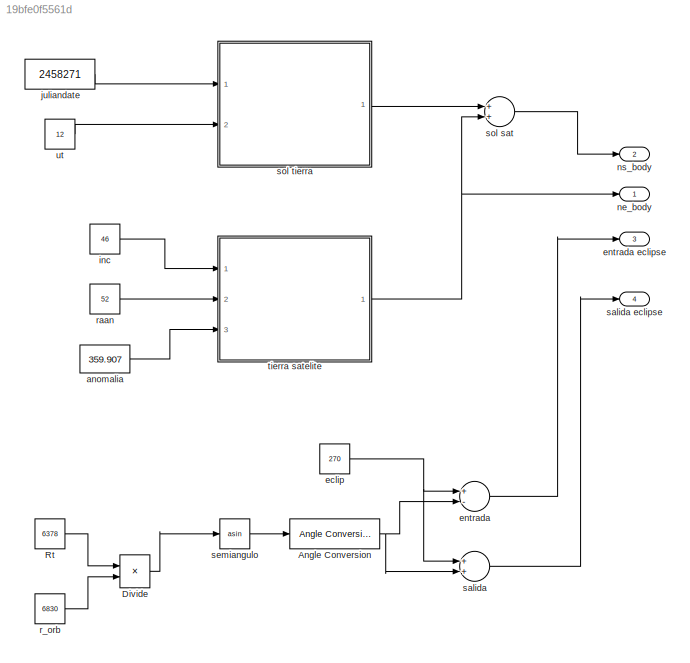
MODEL slx_19bfe0f5561d
KIND model
CONFIG AbsTol = auto
CONFIG EnableMultiTasking = off
CONFIG FixedStep = auto
CONFIG MaxStep = auto
CONFIG MinStep = auto
CONFIG RelTol = 1e-3
CONFIG SampleTimeConstraint = Unconstrained
CONFIG Solver = VariableStepAuto
CONFIG SolverName = VariableStepAuto
CONFIG StartTime = 0.0
CONFIG StopTime = 10.0
BLOCK [Reference] Angle Conversion  REF=aerolibconvert2/Angle Conversion
  Ports = [1, 1]
  SourceBlock = aerolibconvert2/Angle Conversion
  SourceProductBaseCode = AE
  SourceProductName = Aerospace Blockset
  SourceType = Angle Conversion
BLOCK [Product] Divide
  InputSameDT = off
  Inputs = */
  OutDataTypeStr = Inherit: Inherit via internal rule
  Ports = [2, 1]
  RndMeth = Floor
  SaturateOnIntegerOverflow = off
BLOCK [Constant] Rt
  Value = 6378
BLOCK [Constant] anomalia
  Value = 359.907
BLOCK [Constant] eclip
  Value = 270
BLOCK [Sum] entrada
  InputSameDT = off
  Inputs = +-
  OutDataTypeStr = Inherit: Inherit via internal rule
  Ports = [2, 1]
  SaturateOnIntegerOverflow = off
BLOCK [Outport] entrada eclipse
  IconDisplay = Port number
  Port = 3
  VectorParamsAs1DForOutWhenUnconnected = off
BLOCK [Constant] inc
  Value = 46
BLOCK [Constant] juliandate
  Value = 2458271
BLOCK [Outport] ne_body
  IconDisplay = Port number
  VectorParamsAs1DForOutWhenUnconnected = off
BLOCK [Outport] ns_body
  IconDisplay = Port number
  Port = 2
  VectorParamsAs1DForOutWhenUnconnected = off
BLOCK [Constant] r_orb
  Value = 6830
BLOCK [Constant] raan
  Value = 52
BLOCK [Sum] salida
  InputSameDT = off
  OutDataTypeStr = Inherit: Inherit via internal rule
  Ports = [2, 1]
  SaturateOnIntegerOverflow = off
BLOCK [Outport] salida eclipse
  IconDisplay = Port number
  Port = 4
  VectorParamsAs1DForOutWhenUnconnected = off
BLOCK [Trigonometry] semiangulo
  Operator = asin
  Ports = [1, 1]
BLOCK [Sum] sol sat
  InputSameDT = off
  OutDataTypeStr = Inherit: Inherit via internal rule
  Ports = [2, 1]
  SaturateOnIntegerOverflow = off
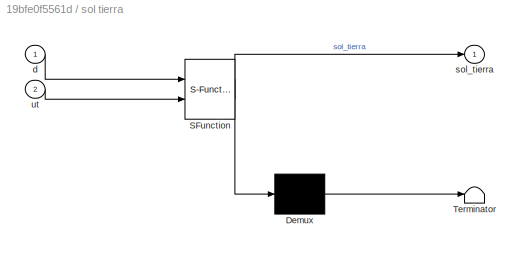
BLOCK [SubSystem] sol tierra
  ErrorFcn = Stateflow.Translate.translate
  PermitHierarchicalResolution = ExplicitOnly
  Ports = [2, 1]
  RequestExecContextInheritance = off
  SFBlockType = MATLAB Function
  TreatAsAtomicUnit = on
BLOCK [Demux] sol tierra/ Demux 
  Outputs = 1
  Ports = [1, 1]
BLOCK [S-Function] sol tierra/ SFunction 
  EnableBusSupport = on
  FunctionName = sf_sfun
  PortCounts = [2 2]
  Ports = [2, 2]
  SFcnIsStateOwnerBlock = off
  SFunctionDeploymentMode = off
  Tag = Stateflow S-Function 2
BLOCK [Terminator] sol tierra/ Terminator 
BLOCK [Inport] sol tierra/d
  IconDisplay = Port number
BLOCK [Outport] sol tierra/sol_tierra
  IconDisplay = Port number
BLOCK [Inport] sol tierra/ut
  IconDisplay = Port number
  Port = 2
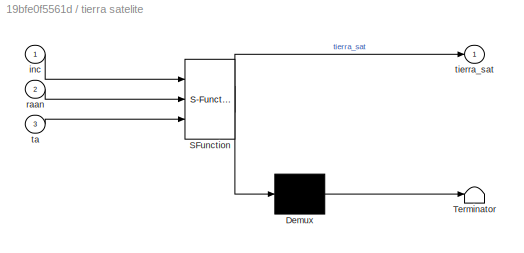
BLOCK [SubSystem] tierra satelite
  ErrorFcn = Stateflow.Translate.translate
  PermitHierarchicalResolution = ExplicitOnly
  Ports = [3, 1]
  RequestExecContextInheritance = off
  SFBlockType = MATLAB Function
  TreatAsAtomicUnit = on
BLOCK [Demux] tierra satelite/ Demux 
  Outputs = 1
  Ports = [1, 1]
BLOCK [S-Function] tierra satelite/ SFunction 
  EnableBusSupport = on
  FunctionName = sf_sfun
  PortCounts = [3 2]
  Ports = [3, 2]
  SFcnIsStateOwnerBlock = off
  SFunctionDeploymentMode = off
  Tag = Stateflow S-Function 1
BLOCK [Terminator] tierra satelite/ Terminator 
BLOCK [Inport] tierra satelite/inc
  IconDisplay = Port number
BLOCK [Inport] tierra satelite/raan
  IconDisplay = Port number
  Port = 2
BLOCK [Inport] tierra satelite/ta
  IconDisplay = Port number
  Port = 3
BLOCK [Outport] tierra satelite/tierra_sat
  IconDisplay = Port number
BLOCK [Constant] ut
  Value = 12
NET Angle Conversion:1 -> entrada:2, salida:2
LINE Divide:1 -> semiangulo:1
LINE Rt:1 -> Divide:1
LINE anomalia:1 -> tierra satelite:3
NET eclip:1 -> entrada:1, salida:1
LINE entrada:1 -> entrada eclipse:1
LINE inc:1 -> tierra satelite:1
LINE juliandate:1 -> sol tierra:1
LINE r_orb:1 -> Divide:2
LINE raan:1 -> tierra satelite:2
LINE salida:1 -> salida eclipse:1
LINE semiangulo:1 -> Angle Conversion:1
LINE sol sat:1 -> ns_body:1
LINE sol tierra:1 -> sol sat:1
NET tierra satelite:1 -> ne_body:1, sol sat:2
LINE ut:1 -> sol tierra:2
note: NET lines group one-source signal fan-out (src -> all destinations, sorted); 1:1 wires keep LINE
CHART tierra satelite states=1 transitions=1
  STATE_LABEL 'eML_blk_kernel()'
  STATE_LABEL "SCRIPT:\nfunction tierra_sat = fcn(inc, raan, ta)\n\nR=([cosd(raan) -sind(raan) 0; sind(raan) cosd(raan) 0; 0 0 1]*[1 0 0; 0 cosd(inc) -sind(inc);0 sind(inc) cosd(inc)]);\nC_opf=R';\nC_opr=[ cosd(ta) sind(ta) 0; -sind(ta) cosd(ta) 0; 0 0 1];\nC_lv=[0 1 0;0 0 -1;-1 0 0];\nr_lv=[0;0;1];\n% r_lv=[0;0;r];\nTS=C_opf*C_opr*C_lv*r_lv;\n\n\n% TS=TS/norm(TS);\n\ntierra_sat=TS;\n\n "
CHART sol tierra states=1 transitions=1
  STATE_LABEL 'eML_blk_kernel()'
  STATE_LABEL 'SCRIPT:\nfunction sol_tierra = fcn(d,ut)\n\n% d=juliandate([2018,month,1,ut,0,0]);\n% d=2458271;\nT=(d+ut/24-2451545)/36525;\n\nL=mod(280.46+36000.77*T,360);\nG=mod(357.528+35999.05*T,360);\nlambda=L+1.915*sind(G)+0.02*sind(2*G);\nepsilon=23.4393-0.013*T;\nE=-1.915*sind(G)-0.02*sind(2*G)+2.4466*sind(2*lambda)-0.053*sind(4*lambda);\nGHA=15*ut-180+E;\ndelta=asind(sind(epsilon)*sind(lambda));\nalfa=69; %angulo mer...<+217ch>'
